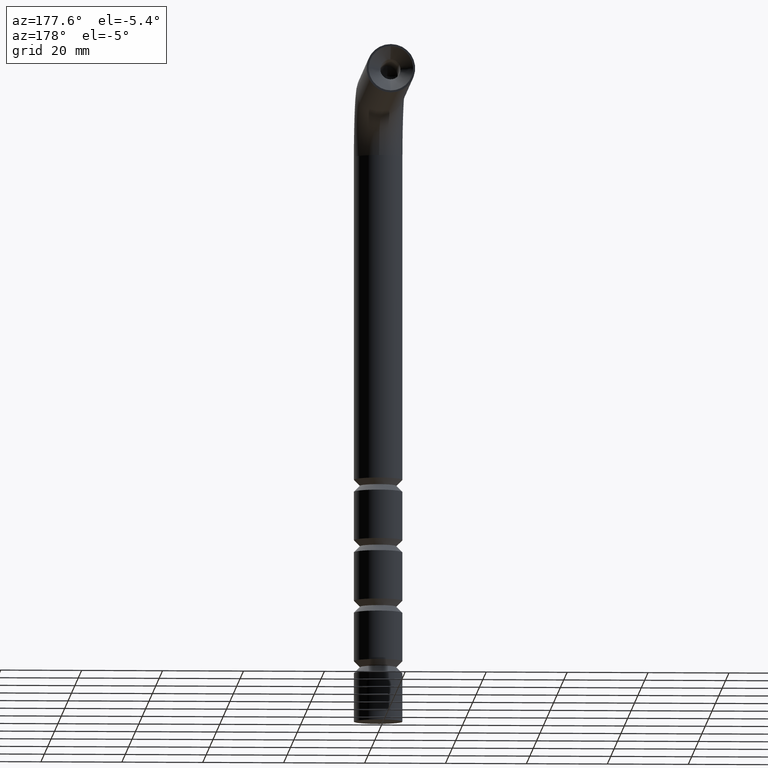
[diagram: clean part render]
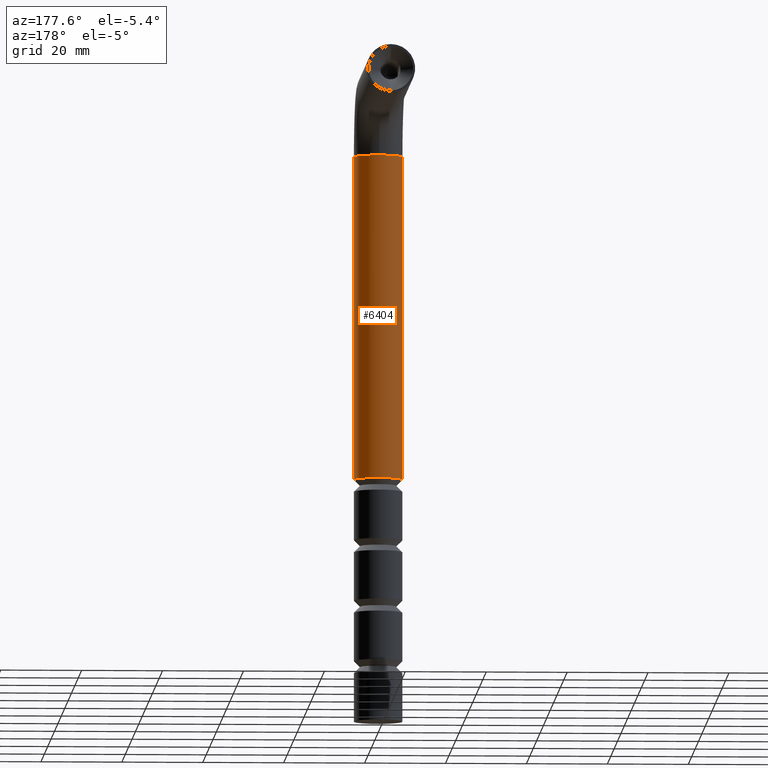
[diagram: same view with one face highlighted and labeled with its STEP entity id]
A machine part, auxiliary view. The second image highlights one B-rep face of the part: STEP entity #6404.
In plain terms, the highlighted cylindrical surface (edge-blend (fillet) strip) has radius 6 mm, axis along (0, 0, -1).
Its self-contained STEP definition (entity closure, byte-faithful):
#674 = DIRECTION ( 'NONE',  ( 0.000000000000000000, 0.000000000000000000, -1.000000000000000000 ) ) ;
#1021 = CARTESIAN_POINT ( 'NONE',  ( 6.000000000000000888, 7.347880794884120722E-16, 140.0000000000000000 ) ) ;
#1671 = LINE ( 'NONE', #1021, #5446 ) ;
#1751 = CARTESIAN_POINT ( 'NONE',  ( -6.000000000000000888, 0.000000000000000000, 140.0000000000000000 ) ) ;
#1998 = FACE_OUTER_BOUND ( 'NONE', #10119, .T. ) ;
#2042 = DIRECTION ( 'NONE',  ( -0.000000000000000000, -0.000000000000000000, -1.000000000000000000 ) ) ;
#2910 = VERTEX_POINT ( 'NONE', #10999 ) ;
#3504 = CARTESIAN_POINT ( 'NONE',  ( 0.000000000000000000, -6.938893903907228378E-15, 140.0000000000000000 ) ) ;
#3893 = VERTEX_POINT ( 'NONE', #9923 ) ;
#4118 = CARTESIAN_POINT ( 'NONE',  ( -5.999999999999686473, 0.000000000000000000, 60.00000000000000000 ) ) ;
#4330 = AXIS2_PLACEMENT_3D ( 'NONE', #6072, #6032, #9175 ) ;
#4349 = DIRECTION ( 'NONE',  ( 1.000000000000000000, 0.000000000000000000, 0.000000000000000000 ) ) ;
#4593 = AXIS2_PLACEMENT_3D ( 'NONE', #3504, #8437, #4349 ) ;
#4809 = DIRECTION ( 'NONE',  ( -1.000000000000000000, 0.000000000000000000, 0.000000000000000000 ) ) ;
#5016 = VERTEX_POINT ( 'NONE', #4118 ) ;
#5111 = DIRECTION ( 'NONE',  ( -1.000000000000000000, 0.000000000000000000, 0.000000000000000000 ) ) ;
#5446 = VECTOR ( 'NONE', #9176, 1000.000000000000000 ) ;
#5757 = CARTESIAN_POINT ( 'NONE',  ( 6.000000000000000888, 7.347880794884118750E-16, 140.0000000000000000 ) ) ;
#6032 = DIRECTION ( 'NONE',  ( 0.000000000000000000, 0.000000000000000000, 1.000000000000000000 ) ) ;
#6072 = CARTESIAN_POINT ( 'NONE',  ( 0.000000000000000000, -6.938893903907228378E-15, 140.0000000000000000 ) ) ;
#6320 = EDGE_CURVE ( 'NONE', #7675, #2910, #1671, .T. ) ;
#6404 = ADVANCED_FACE ( 'NONE', ( #1998 ), #8009, .T. ) ;
#6545 = CIRCLE ( 'NONE', #9901, 5.999999999999686473 ) ;
#6758 = DIRECTION ( 'NONE',  ( 0.000000000000000000, 0.000000000000000000, -1.000000000000000000 ) ) ;
#7106 = ORIENTED_EDGE ( 'NONE', *, *, #6320, .T. ) ;
#7176 = ORIENTED_EDGE ( 'NONE', *, *, #8554, .F. ) ;
#7478 = CARTESIAN_POINT ( 'NONE',  ( -7.347880794884123680E-16, 5.999999999999993783, 140.0000000000000000 ) ) ;
#7675 = VERTEX_POINT ( 'NONE', #5757 ) ;
#8009 = CYLINDRICAL_SURFACE ( 'NONE', #8847, 6.000000000000000888 ) ;
#8127 = VECTOR ( 'NONE', #674, 1000.000000000000000 ) ;
#8289 = CIRCLE ( 'NONE', #4330, 6.000000000000000888 ) ;
#8401 = EDGE_CURVE ( 'NONE', #3893, #5016, #9077, .T. ) ;
#8437 = DIRECTION ( 'NONE',  ( 0.000000000000000000, 0.000000000000000000, 1.000000000000000000 ) ) ;
#8554 = EDGE_CURVE ( 'NONE', #11007, #3893, #8289, .T. ) ;
#8847 = AXIS2_PLACEMENT_3D ( 'NONE', #10906, #6758, #4809 ) ;
#9077 = LINE ( 'NONE', #1751, #8127 ) ;
#9175 = DIRECTION ( 'NONE',  ( 1.000000000000000000, 0.000000000000000000, 0.000000000000000000 ) ) ;
#9176 = DIRECTION ( 'NONE',  ( 0.000000000000000000, 0.000000000000000000, -1.000000000000000000 ) ) ;
#9717 = ORIENTED_EDGE ( 'NONE', *, *, #10095, .F. ) ;
#9901 = AXIS2_PLACEMENT_3D ( 'NONE', #10048, #2042, #5111 ) ;
#9923 = CARTESIAN_POINT ( 'NONE',  ( -6.000000000000000888, 0.000000000000000000, 140.0000000000000000 ) ) ;
#10048 = CARTESIAN_POINT ( 'NONE',  ( 0.000000000000000000, 0.000000000000000000, 60.00000000000000000 ) ) ;
#10095 = EDGE_CURVE ( 'NONE', #7675, #11007, #11849, .T. ) ;
#10119 = EDGE_LOOP ( 'NONE', ( #9717, #7106, #11768, #11224, #7176 ) ) ;
#10906 = CARTESIAN_POINT ( 'NONE',  ( 0.000000000000000000, 0.000000000000000000, 140.0000000000000000 ) ) ;
#10999 = CARTESIAN_POINT ( 'NONE',  ( 5.999999999999686473, 7.347880794883926465E-16, 60.00000000000000000 ) ) ;
#11007 = VERTEX_POINT ( 'NONE', #7478 ) ;
#11224 = ORIENTED_EDGE ( 'NONE', *, *, #8401, .F. ) ;
#11768 = ORIENTED_EDGE ( 'NONE', *, *, #13195, .F. ) ;
#11849 = CIRCLE ( 'NONE', #4593, 6.000000000000000888 ) ;
#13195 = EDGE_CURVE ( 'NONE', #5016, #2910, #6545, .T. ) ;